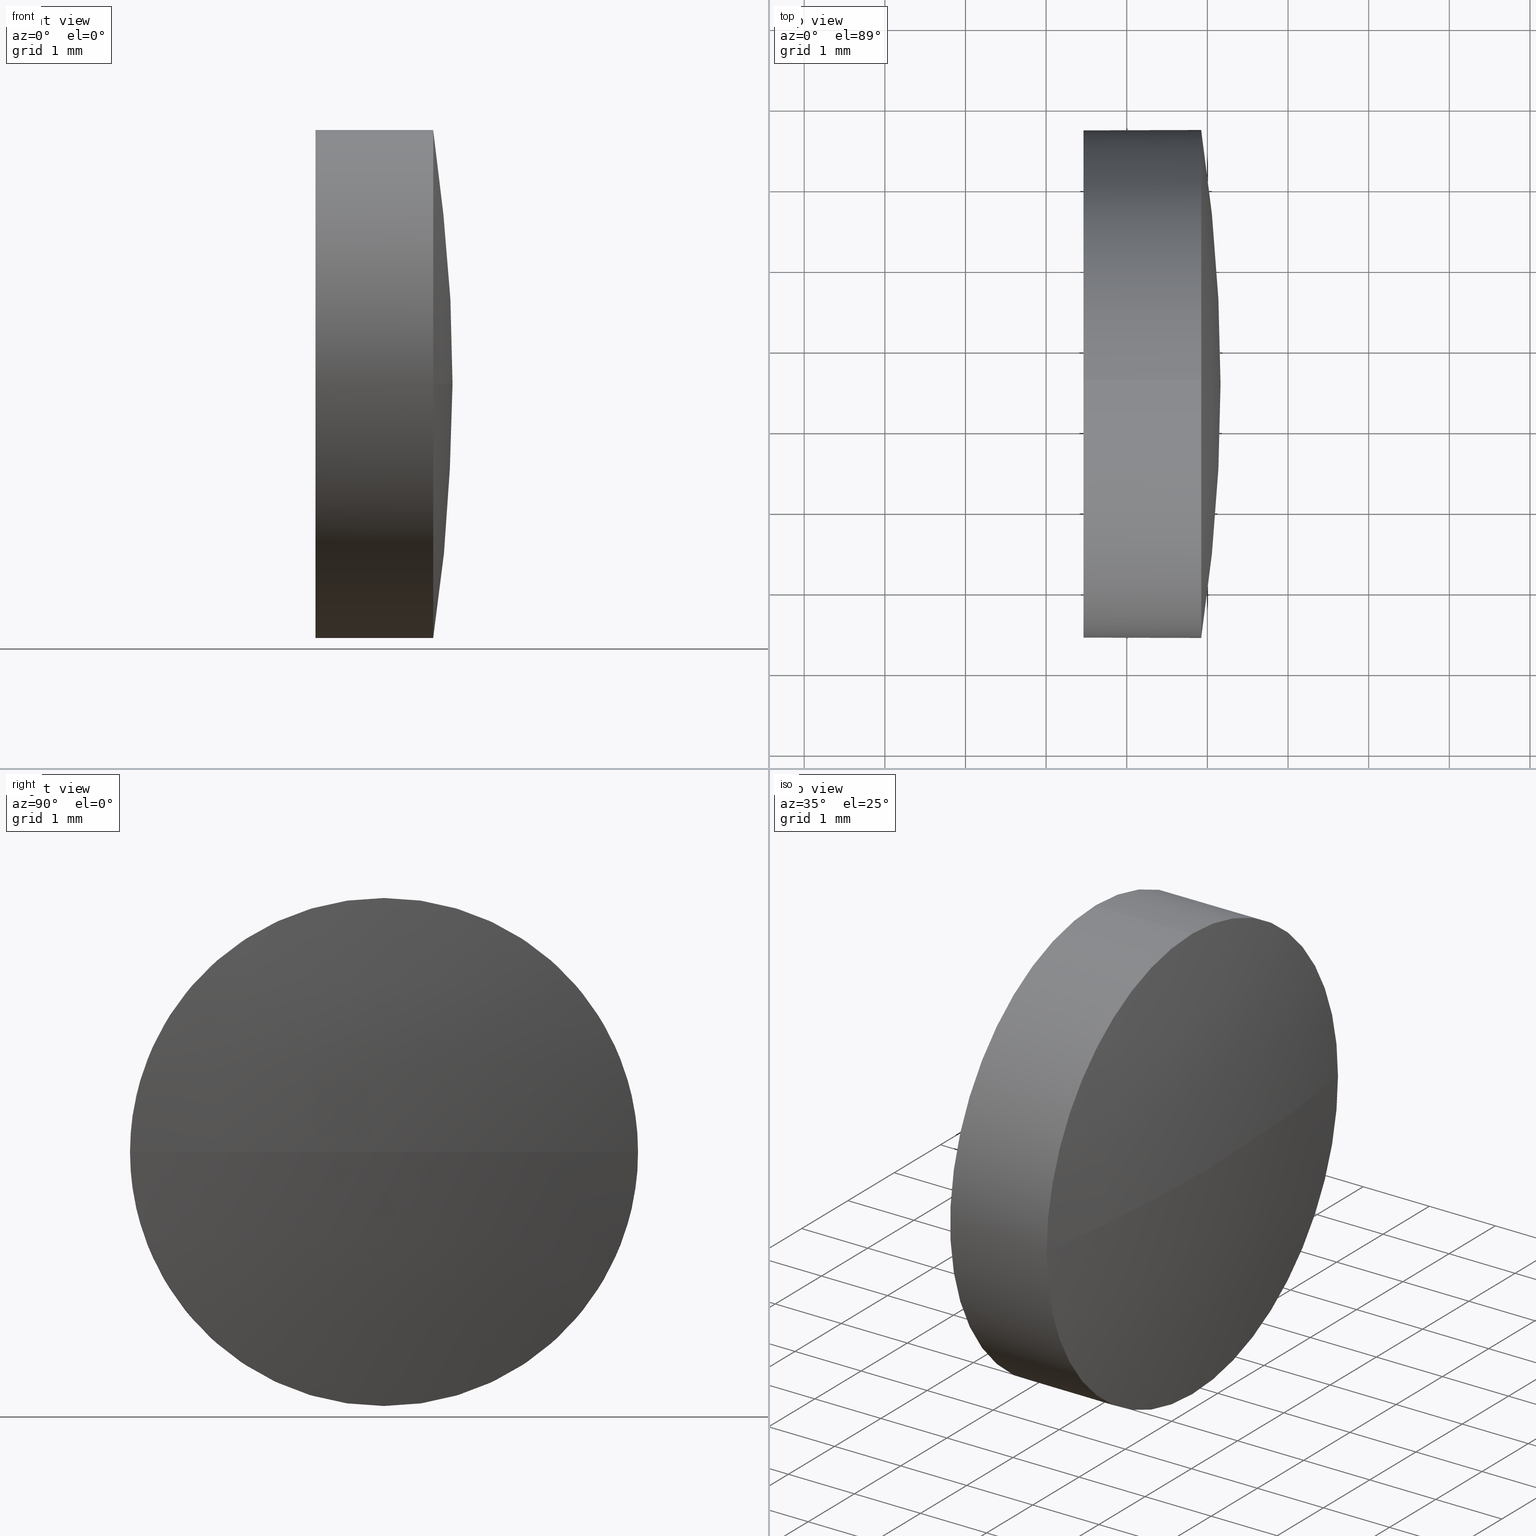
[diagram: canonical four-view strip — front | top / right | iso, engineering-drawing reading convention]
A machine part, canonical four-view strip (front | top / right | iso — engineering-drawing reading convention). The complete STEP part file that produces these views, byte-faithful:
ISO-10303-21;
HEADER;
FILE_DESCRIPTION (( 'STEP AP214' ),
    '1' );
FILE_NAME ('100012.STEP',
    '2019-04-19T06:33:30',
    ( '' ),
    ( '' ),
    'SwSTEP 2.0',
    'SolidWorks 2016',
    '' );
FILE_SCHEMA (( 'AUTOMOTIVE_DESIGN' ));
ENDSEC;

DATA;
#1 = EDGE_CURVE ( 'NONE', #112, #130, #159, .T. ) ;
#2 = COLOUR_RGB ( '',1.000000000000000000, 1.000000000000000000, 1.000000000000000000 ) ;
#3 = ADVANCED_FACE ( 'NONE', ( #70 ), #97, .F. ) ;
#4 = MECHANICAL_DESIGN_GEOMETRIC_PRESENTATION_REPRESENTATION (  '', ( #122 ), #183 ) ;
#5 = MANIFOLD_SOLID_BREP ( '��ת1', #26 ) ;
#6 = MECHANICAL_DESIGN_GEOMETRIC_PRESENTATION_REPRESENTATION (  '', ( #17 ), #82 ) ;
#7 = DIRECTION ( 'NONE',  ( 0.0000000000000000000, 1.224646799147353200E-016, -1.000000000000000000 ) ) ;
#8 = ORIENTED_EDGE ( 'NONE', *, *, #145, .F. ) ;
#9 = FILL_AREA_STYLE ('',( #47 ) ) ;
#10 = CIRCLE ( 'NONE', #149, 3.149999999999875100 ) ;
#11 = DIRECTION ( 'NONE',  ( 0.0000000000000000000, 0.0000000000000000000, 1.000000000000000000 ) ) ;
#12 = AXIS2_PLACEMENT_3D ( 'NONE', #99, #46, #16 ) ;
#13 = CIRCLE ( 'NONE', #135, 20.79187499999990500 ) ;
#14 = DIRECTION ( 'NONE',  ( -1.000000000000000000, -0.0000000000000000000, -0.0000000000000000000 ) ) ;
#15 =( LENGTH_UNIT ( ) NAMED_UNIT ( * ) SI_UNIT ( .MILLI., .METRE. ) );
#16 = DIRECTION ( 'NONE',  ( 0.0000000000000000000, 1.000000000000000000, 0.0000000000000000000 ) ) ;
#17 = STYLED_ITEM ( 'NONE', ( #147 ), #134 ) ;
#18 =( NAMED_UNIT ( * ) SI_UNIT ( $, .STERADIAN. ) SOLID_ANGLE_UNIT ( ) );
#19 =( NAMED_UNIT ( * ) PLANE_ANGLE_UNIT ( ) SI_UNIT ( $, .RADIAN. ) );
#20 = ADVANCED_FACE ( 'NONE', ( #38 ), #43, .T. ) ;
#21 =( LENGTH_UNIT ( ) NAMED_UNIT ( * ) SI_UNIT ( .MILLI., .METRE. ) );
#22 = ADVANCED_FACE ( 'NONE', ( #80 ), #124, .T. ) ;
#23 = CARTESIAN_POINT ( 'NONE',  ( 819.9228674675298400, 336.5592304436489700, 3.149999999999875100 ) ) ;
#24 = ORIENTED_EDGE ( 'NONE', *, *, #91, .T. ) ;
#25 = LINE ( 'NONE', #34, #27 ) ;
#26 = CLOSED_SHELL ( 'NONE', ( #123, #87, #20, #22, #3 ) ) ;
#27 = VECTOR ( 'NONE', #150, 1000.000000000000000 ) ;
#28 = PRESENTATION_STYLE_ASSIGNMENT (( #44 ) ) ;
#29 = CARTESIAN_POINT ( 'NONE',  ( 819.9228674675298400, 336.5592304436489700, -3.149999999999875100 ) ) ;
#30 = CARTESIAN_POINT ( 'NONE',  ( 820.1628674675299600, 336.5592304436480600, 0.0000000000000000000 ) ) ;
#31 = EDGE_LOOP ( 'NONE', ( #40, #63, #8, #98 ) ) ;
#32 = EDGE_CURVE ( 'NONE', #79, #100, #25, .T. ) ;
#33 = EDGE_LOOP ( 'NONE', ( #41, #24 ) ) ;
#34 = CARTESIAN_POINT ( 'NONE',  ( 798.2662876315907900, 336.5592304436489700, -3.149999999999875100 ) ) ;
#35 = APPLICATION_PROTOCOL_DEFINITION ( 'draft international standard', 'automotive_design', 1998, #152 ) ;
#36 =( LENGTH_UNIT ( ) NAMED_UNIT ( * ) SI_UNIT ( .MILLI., .METRE. ) );
#37 = CARTESIAN_POINT ( 'NONE',  ( 818.4628674675299200, 336.5592304436489700, 0.0000000000000000000 ) ) ;
#38 = FACE_OUTER_BOUND ( 'NONE', #53, .T. ) ;
#39 = VERTEX_POINT ( 'NONE', #132 ) ;
#40 = ORIENTED_EDGE ( 'NONE', *, *, #125, .F. ) ;
#41 = ORIENTED_EDGE ( 'NONE', *, *, #176, .T. ) ;
#42 = AXIS2_PLACEMENT_3D ( 'NONE', #48, #179, #85 ) ;
#43 = SPHERICAL_SURFACE ( 'NONE', #128, 20.79187499999990500 ) ;
#44 = SURFACE_STYLE_USAGE ( .BOTH. , #84 ) ;
#45 = DIRECTION ( 'NONE',  ( 0.0000000000000000000, 0.0000000000000000000, -1.000000000000000000 ) ) ;
#46 = DIRECTION ( 'NONE',  ( -0.0000000000000000000, 0.0000000000000000000, -1.000000000000000000 ) ) ;
#47 = FILL_AREA_STYLE_COLOUR ( '', #136 ) ;
#48 = CARTESIAN_POINT ( 'NONE',  ( 798.2662876315907900, 336.5592304436489700, 0.0000000000000000000 ) ) ;
#49 = APPLICATION_PROTOCOL_DEFINITION ( 'draft international standard', 'automotive_design', 1998, #120 ) ;
#50 = DIRECTION ( 'NONE',  ( -1.000000000000000000, -0.0000000000000000000, -0.0000000000000000000 ) ) ;
#51 = AXIS2_PLACEMENT_3D ( 'NONE', #81, #14, #114 ) ;
#52 = AXIS2_PLACEMENT_3D ( 'NONE', #164, #50, #60 ) ;
#53 = EDGE_LOOP ( 'NONE', ( #143, #138, #55, #144 ) ) ;
#54 = ORIENTED_EDGE ( 'NONE', *, *, #32, .T. ) ;
#55 = ORIENTED_EDGE ( 'NONE', *, *, #86, .F. ) ;
#56 = DIRECTION ( 'NONE',  ( -0.0000000000000000000, 0.0000000000000000000, -1.000000000000000000 ) ) ;
#57 = CARTESIAN_POINT ( 'NONE',  ( 819.9228674675298400, 336.5592304436489700, 0.0000000000000000000 ) ) ;
#58 = ORIENTED_EDGE ( 'NONE', *, *, #181, .T. ) ;
#59 = CIRCLE ( 'NONE', #107, 3.149999999999875100 ) ;
#60 = DIRECTION ( 'NONE',  ( 0.0000000000000000000, 0.0000000000000000000, 1.000000000000000000 ) ) ;
#61 = AXIS2_PLACEMENT_3D ( 'NONE', #178, #121, #76 ) ;
#62 = DIRECTION ( 'NONE',  ( 1.000000000000000000, 0.0000000000000000000, 0.0000000000000000000 ) ) ;
#63 = ORIENTED_EDGE ( 'NONE', *, *, #172, .T. ) ;
#64 = CARTESIAN_POINT ( 'NONE',  ( 799.3709924675300700, 336.5592304436480600, 0.0000000000000000000 ) ) ;
#65 = PRESENTATION_LAYER_ASSIGNMENT (  '', '', ( #17 ) ) ;
#66 = VECTOR ( 'NONE', #162, 1000.000000000000000 ) ;
#67 = AXIS2_PLACEMENT_3D ( 'NONE', #180, #103, #140 ) ;
#68 = VERTEX_POINT ( 'NONE', #30 ) ;
#69 = DIRECTION ( 'NONE',  ( -1.000000000000000000, -0.0000000000000000000, -0.0000000000000000000 ) ) ;
#70 = FACE_OUTER_BOUND ( 'NONE', #33, .T. ) ;
#71 = DIRECTION ( 'NONE',  ( 1.000000000000000000, 0.0000000000000000000, 0.0000000000000000000 ) ) ;
#72 =( NAMED_UNIT ( * ) PLANE_ANGLE_UNIT ( ) SI_UNIT ( $, .RADIAN. ) );
#73 = SPHERICAL_SURFACE ( 'NONE', #12, 20.79187499999990500 ) ;
#74 = EDGE_CURVE ( 'NONE', #167, #79, #93, .T. ) ;
#75 = DIRECTION ( 'NONE',  ( -1.000000000000000000, -0.0000000000000000000, -0.0000000000000000000 ) ) ;
#76 = DIRECTION ( 'NONE',  ( 0.0000000000000000000, 0.0000000000000000000, 1.000000000000000000 ) ) ;
#77 = DIRECTION ( 'NONE',  ( -1.000000000000000000, -0.0000000000000000000, -0.0000000000000000000 ) ) ;
#78 = PRODUCT_CONTEXT ( 'NONE', #152, 'mechanical' ) ;
#79 = VERTEX_POINT ( 'NONE', #29 ) ;
#80 = FACE_OUTER_BOUND ( 'NONE', #175, .T. ) ;
#81 = CARTESIAN_POINT ( 'NONE',  ( 819.9228674675298400, 336.5592304436489700, 0.0000000000000000000 ) ) ;
#82 =( GEOMETRIC_REPRESENTATION_CONTEXT ( 3 ) GLOBAL_UNCERTAINTY_ASSIGNED_CONTEXT ( ( #174 ) ) GLOBAL_UNIT_ASSIGNED_CONTEXT ( ( #36, #137, #182 ) ) REPRESENTATION_CONTEXT ( 'NONE', 'WORKASPACE' ) );
#83 = CARTESIAN_POINT ( 'NONE',  ( 818.4628674675299200, 336.5592304436489700, -3.149999999999875100 ) ) ;
#84 = SURFACE_SIDE_STYLE ('',( #186 ) ) ;
#85 = DIRECTION ( 'NONE',  ( 0.0000000000000000000, 0.0000000000000000000, 1.000000000000000000 ) ) ;
#86 = EDGE_CURVE ( 'NONE', #112, #167, #113, .T. ) ;
#87 = ADVANCED_FACE ( 'NONE', ( #177 ), #73, .T. ) ;
#88 = DIRECTION ( 'NONE',  ( 0.0000000000000000000, 1.000000000000000000, 1.224646799147353200E-016 ) ) ;
#89 = SURFACE_SIDE_STYLE ('',( #92 ) ) ;
#90 = CARTESIAN_POINT ( 'NONE',  ( 819.9228674675298400, 339.7092304436488900, 0.0000000000000000000 ) ) ;
#91 = EDGE_CURVE ( 'NONE', #100, #130, #59, .T. ) ;
#92 = SURFACE_STYLE_FILL_AREA ( #9 ) ;
#93 = CIRCLE ( 'NONE', #51, 3.149999999999875100 ) ;
#94 = PRODUCT_DEFINITION ( 'δ֪', '', #95, #131 ) ;
#95 = PRODUCT_DEFINITION_FORMATION_WITH_SPECIFIED_SOURCE ( '�κ�', '', #158, .NOT_KNOWN. ) ;
#96 = CIRCLE ( 'NONE', #156, 20.79187499999990500 ) ;
#97 = PLANE ( 'NONE',  #111 ) ;
#98 = ORIENTED_EDGE ( 'NONE', *, *, #74, .F. ) ;
#99 = CARTESIAN_POINT ( 'NONE',  ( 799.3709924675300700, 336.5592304436480600, 0.0000000000000000000 ) ) ;
#100 = VERTEX_POINT ( 'NONE', #83 ) ;
#101 = CARTESIAN_POINT ( 'NONE',  ( 818.4628674675299200, 336.5592304436488600, 0.0000000000000000000 ) ) ;
#102 = CARTESIAN_POINT ( 'NONE',  ( 799.3709924675300700, 336.5592304436480600, 0.0000000000000000000 ) ) ;
#103 = DIRECTION ( 'NONE',  ( 0.0000000000000000000, 0.0000000000000000000, 1.000000000000000000 ) ) ;
#104 = ORIENTED_EDGE ( 'NONE', *, *, #1, .F. ) ;
#105 = CARTESIAN_POINT ( 'NONE',  ( 819.9228674675298400, 336.5592304436489700, 0.0000000000000000000 ) ) ;
#106 = DIRECTION ( 'NONE',  ( -1.000000000000000000, -0.0000000000000000000, -0.0000000000000000000 ) ) ;
#107 = AXIS2_PLACEMENT_3D ( 'NONE', #37, #106, #11 ) ;
#108 = PRODUCT_RELATED_PRODUCT_CATEGORY ( 'part', '', ( #158 ) ) ;
#109 = CYLINDRICAL_SURFACE ( 'NONE', #61, 3.149999999999875100 ) ;
#110 = UNCERTAINTY_MEASURE_WITH_UNIT (LENGTH_MEASURE( 1.000000000000000100E-005 ), #21, 'distance_accuracy_value', 'NONE');
#111 = AXIS2_PLACEMENT_3D ( 'NONE', #101, #71, #45 ) ;
#112 = VERTEX_POINT ( 'NONE', #23 ) ;
#113 = CIRCLE ( 'NONE', #119, 3.149999999999875100 ) ;
#114 = DIRECTION ( 'NONE',  ( 0.0000000000000000000, 0.0000000000000000000, 1.000000000000000000 ) ) ;
#115 = PRESENTATION_LAYER_ASSIGNMENT (  '', '', ( #122 ) ) ;
#116 = CARTESIAN_POINT ( 'NONE',  ( 798.2662876315907900, 336.5592304436489700, 3.149999999999875100 ) ) ;
#117 = CARTESIAN_POINT ( 'NONE',  ( 799.3709924675300700, 336.5592304436480600, 0.0000000000000000000 ) ) ;
#118 = DIRECTION ( 'NONE',  ( 0.0000000000000000000, 1.000000000000000000, 0.0000000000000000000 ) ) ;
#119 = AXIS2_PLACEMENT_3D ( 'NONE', #57, #69, #129 ) ;
#120 = APPLICATION_CONTEXT ( 'automotive_design' ) ;
#121 = DIRECTION ( 'NONE',  ( -1.000000000000000000, -0.0000000000000000000, -0.0000000000000000000 ) ) ;
#122 = STYLED_ITEM ( 'NONE', ( #28 ), #5 ) ;
#123 = ADVANCED_FACE ( 'NONE', ( #173 ), #109, .T. ) ;
#124 = CYLINDRICAL_SURFACE ( 'NONE', #42, 3.149999999999875100 ) ;
#125 = EDGE_CURVE ( 'NONE', #68, #167, #13, .T. ) ;
#126 = PRODUCT_DEFINITION_SHAPE ( 'NONE', 'NONE',  #94 ) ;
#127 = CIRCLE ( 'NONE', #170, 3.149999999999875100 ) ;
#128 = AXIS2_PLACEMENT_3D ( 'NONE', #117, #56, #118 ) ;
#129 = DIRECTION ( 'NONE',  ( 0.0000000000000000000, 0.0000000000000000000, 1.000000000000000000 ) ) ;
#130 = VERTEX_POINT ( 'NONE', #155 ) ;
#131 = PRODUCT_DEFINITION_CONTEXT ( 'detailed design', #120, 'design' ) ;
#132 = CARTESIAN_POINT ( 'NONE',  ( 819.9228674675298400, 333.4092304436482000, -3.857637417314011800E-016 ) ) ;
#133 = ORIENTED_EDGE ( 'NONE', *, *, #145, .T. ) ;
#134 = ADVANCED_BREP_SHAPE_REPRESENTATION ( '100012', ( #5, #67 ), #153 ) ;
#135 = AXIS2_PLACEMENT_3D ( 'NONE', #102, #142, #62 ) ;
#136 = COLOUR_RGB ( '',1.000000000000000000, 1.000000000000000000, 1.000000000000000000 ) ;
#137 =( NAMED_UNIT ( * ) PLANE_ANGLE_UNIT ( ) SI_UNIT ( $, .RADIAN. ) );
#138 = ORIENTED_EDGE ( 'NONE', *, *, #125, .T. ) ;
#139 = DIRECTION ( 'NONE',  ( 0.0000000000000000000, 0.0000000000000000000, 1.000000000000000000 ) ) ;
#140 = DIRECTION ( 'NONE',  ( 1.000000000000000000, 0.0000000000000000000, 0.0000000000000000000 ) ) ;
#141 = CIRCLE ( 'NONE', #52, 3.149999999999875100 ) ;
#142 = DIRECTION ( 'NONE',  ( -0.0000000000000000000, 0.0000000000000000000, 1.000000000000000000 ) ) ;
#143 = ORIENTED_EDGE ( 'NONE', *, *, #172, .F. ) ;
#144 = ORIENTED_EDGE ( 'NONE', *, *, #181, .F. ) ;
#145 = EDGE_CURVE ( 'NONE', #79, #39, #141, .T. ) ;
#146 = ORIENTED_EDGE ( 'NONE', *, *, #86, .T. ) ;
#147 = PRESENTATION_STYLE_ASSIGNMENT (( #165 ) ) ;
#148 = FILL_AREA_STYLE_COLOUR ( '', #2 ) ;
#149 = AXIS2_PLACEMENT_3D ( 'NONE', #105, #77, #166 ) ;
#150 = DIRECTION ( 'NONE',  ( -1.000000000000000000, -0.0000000000000000000, -0.0000000000000000000 ) ) ;
#151 = ORIENTED_EDGE ( 'NONE', *, *, #74, .T. ) ;
#152 = APPLICATION_CONTEXT ( 'automotive_design' ) ;
#153 =( GEOMETRIC_REPRESENTATION_CONTEXT ( 3 ) GLOBAL_UNCERTAINTY_ASSIGNED_CONTEXT ( ( #110 ) ) GLOBAL_UNIT_ASSIGNED_CONTEXT ( ( #21, #19, #154 ) ) REPRESENTATION_CONTEXT ( 'NONE', 'WORKASPACE' ) );
#154 =( NAMED_UNIT ( * ) SI_UNIT ( $, .STERADIAN. ) SOLID_ANGLE_UNIT ( ) );
#155 = CARTESIAN_POINT ( 'NONE',  ( 818.4628674675299200, 336.5592304436489700, 3.149999999999875100 ) ) ;
#156 = AXIS2_PLACEMENT_3D ( 'NONE', #64, #7, #88 ) ;
#157 = UNCERTAINTY_MEASURE_WITH_UNIT (LENGTH_MEASURE( 1.000000000000000100E-005 ), #15, 'distance_accuracy_value', 'NONE');
#158 = PRODUCT ( '100012', '100012', '', ( #78 ) ) ;
#159 = LINE ( 'NONE', #116, #66 ) ;
#160 = ORIENTED_EDGE ( 'NONE', *, *, #1, .T. ) ;
#161 = SHAPE_DEFINITION_REPRESENTATION ( #126, #134 ) ;
#162 = DIRECTION ( 'NONE',  ( -1.000000000000000000, -0.0000000000000000000, -0.0000000000000000000 ) ) ;
#163 = FILL_AREA_STYLE ('',( #148 ) ) ;
#164 = CARTESIAN_POINT ( 'NONE',  ( 819.9228674675298400, 336.5592304436489700, 0.0000000000000000000 ) ) ;
#165 = SURFACE_STYLE_USAGE ( .BOTH. , #89 ) ;
#166 = DIRECTION ( 'NONE',  ( 0.0000000000000000000, 0.0000000000000000000, 1.000000000000000000 ) ) ;
#167 = VERTEX_POINT ( 'NONE', #90 ) ;
#168 = CARTESIAN_POINT ( 'NONE',  ( 818.4628674675299200, 336.5592304436489700, 0.0000000000000000000 ) ) ;
#169 = EDGE_LOOP ( 'NONE', ( #151, #54, #171, #104, #146 ) ) ;
#170 = AXIS2_PLACEMENT_3D ( 'NONE', #168, #75, #139 ) ;
#171 = ORIENTED_EDGE ( 'NONE', *, *, #176, .F. ) ;
#172 = EDGE_CURVE ( 'NONE', #68, #39, #96, .T. ) ;
#173 = FACE_OUTER_BOUND ( 'NONE', #169, .T. ) ;
#174 = UNCERTAINTY_MEASURE_WITH_UNIT (LENGTH_MEASURE( 1.000000000000000100E-005 ), #36, 'distance_accuracy_value', 'NONE');
#175 = EDGE_LOOP ( 'NONE', ( #185, #133, #58, #160, #184 ) ) ;
#176 = EDGE_CURVE ( 'NONE', #130, #100, #127, .T. ) ;
#177 = FACE_OUTER_BOUND ( 'NONE', #31, .T. ) ;
#178 = CARTESIAN_POINT ( 'NONE',  ( 798.2662876315907900, 336.5592304436489700, 0.0000000000000000000 ) ) ;
#179 = DIRECTION ( 'NONE',  ( -1.000000000000000000, -0.0000000000000000000, -0.0000000000000000000 ) ) ;
#180 = CARTESIAN_POINT ( 'NONE',  ( 0.0000000000000000000, 0.0000000000000000000, 0.0000000000000000000 ) ) ;
#181 = EDGE_CURVE ( 'NONE', #39, #112, #10, .T. ) ;
#182 =( NAMED_UNIT ( * ) SI_UNIT ( $, .STERADIAN. ) SOLID_ANGLE_UNIT ( ) );
#183 =( GEOMETRIC_REPRESENTATION_CONTEXT ( 3 ) GLOBAL_UNCERTAINTY_ASSIGNED_CONTEXT ( ( #157 ) ) GLOBAL_UNIT_ASSIGNED_CONTEXT ( ( #15, #72, #18 ) ) REPRESENTATION_CONTEXT ( 'NONE', 'WORKASPACE' ) );
#184 = ORIENTED_EDGE ( 'NONE', *, *, #91, .F. ) ;
#185 = ORIENTED_EDGE ( 'NONE', *, *, #32, .F. ) ;
#186 = SURFACE_STYLE_FILL_AREA ( #163 ) ;
ENDSEC;
END-ISO-10303-21;
